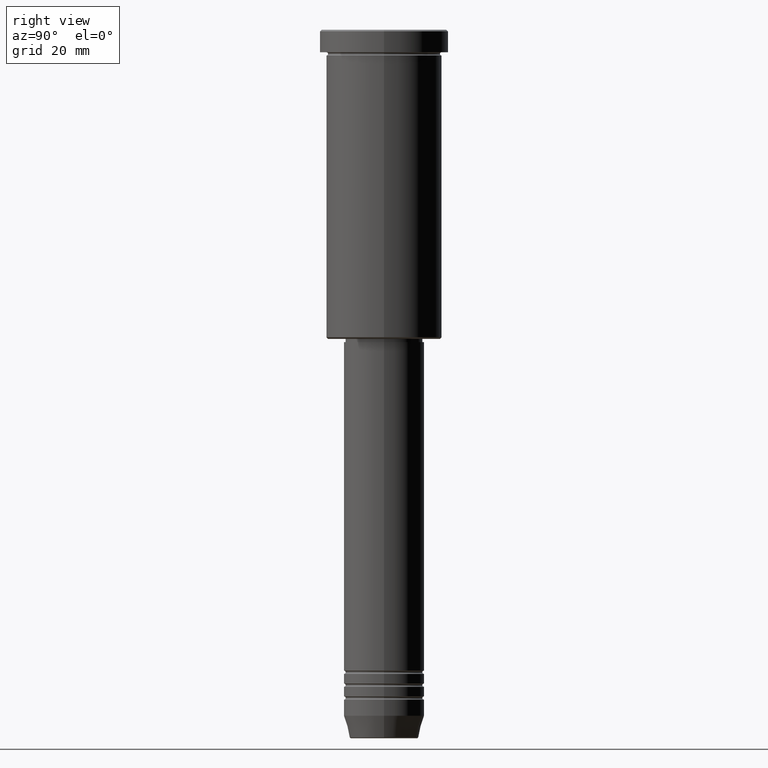
[diagram: clean part render]
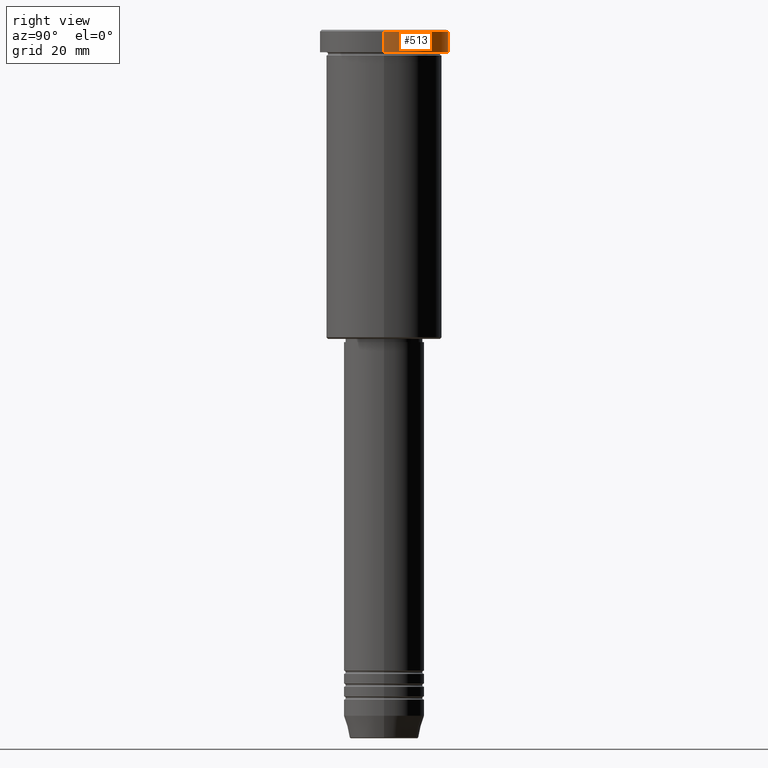
[diagram: same view with one face highlighted and labeled with its STEP entity id]
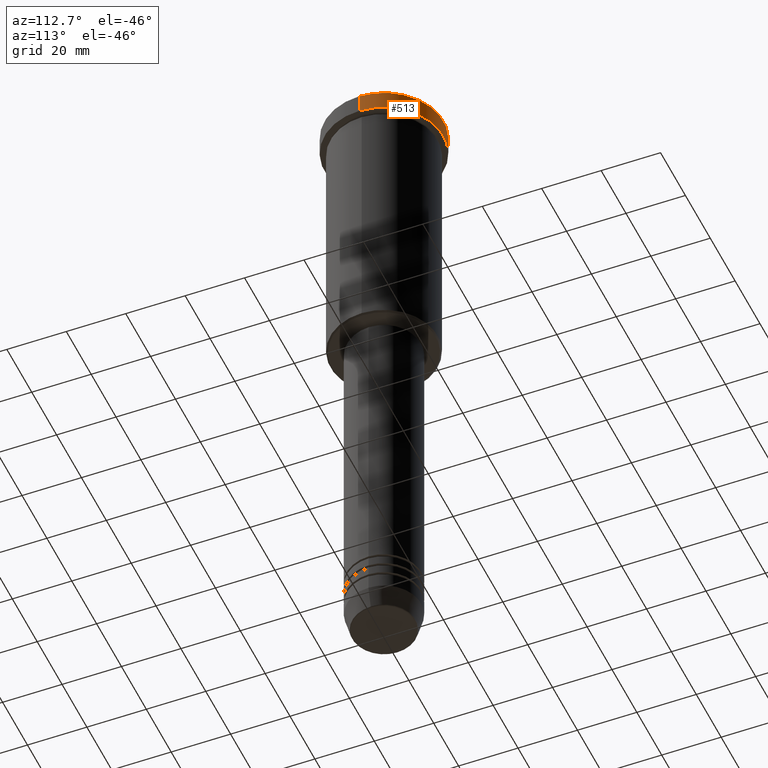
[diagram: same view with one face highlighted and labeled with its STEP entity id]
A machine part, right view. The second image highlights one B-rep face of the part: STEP entity #513.
A second angle (auxiliary view) of the same face is appended — the face is thin or edge-on in the first view.
In plain terms, the highlighted cylindrical surface (partial cylindrical patch) has radius 20 mm, axis along (-0, -0, 1).
Its self-contained STEP definition (entity closure, byte-faithful):
#3 = VERTEX_POINT ( 'NONE', #751 ) ;
#9 = EDGE_CURVE ( 'NONE', #313, #3, #978, .T. ) ;
#73 = DIRECTION ( 'NONE',  ( -0.000000000000000000, -0.000000000000000000, 1.000000000000000000 ) ) ;
#74 = ORIENTED_EDGE ( 'NONE', *, *, #439, .T. ) ;
#198 = CARTESIAN_POINT ( 'NONE',  ( -20.00000000000000000, 2.449293598294706513E-15, -0.4999999999999970024 ) ) ;
#309 = DIRECTION ( 'NONE',  ( 1.000000000000000000, 0.000000000000000000, 0.000000000000000000 ) ) ;
#313 = VERTEX_POINT ( 'NONE', #927 ) ;
#332 = DIRECTION ( 'NONE',  ( -0.000000000000000000, -0.000000000000000000, 1.000000000000000000 ) ) ;
#402 = AXIS2_PLACEMENT_3D ( 'NONE', #436, #800, #611 ) ;
#409 = CYLINDRICAL_SURFACE ( 'NONE', #904, 20.00000000000000000 ) ;
#417 = CARTESIAN_POINT ( 'NONE',  ( -20.00000000000000000, 2.449293598294706513E-15, 0.000000000000000000 ) ) ;
#436 = CARTESIAN_POINT ( 'NONE',  ( 0.000000000000000000, 0.000000000000000000, -0.4999999999999970024 ) ) ;
#439 = EDGE_CURVE ( 'NONE', #870, #750, #612, .T. ) ;
#454 = LINE ( 'NONE', #461, #825 ) ;
#461 = CARTESIAN_POINT ( 'NONE',  ( 20.00000000000000000, 0.000000000000000000, 0.000000000000000000 ) ) ;
#482 = DIRECTION ( 'NONE',  ( 1.000000000000000000, 0.000000000000000000, 0.000000000000000000 ) ) ;
#513 = ADVANCED_FACE ( 'NONE', ( #861 ), #409, .T. ) ;
#572 = VECTOR ( 'NONE', #1146, 1000.000000000000000 ) ;
#588 = AXIS2_PLACEMENT_3D ( 'NONE', #1121, #759, #482 ) ;
#596 = LINE ( 'NONE', #417, #572 ) ;
#611 = DIRECTION ( 'NONE',  ( 1.000000000000000000, 0.000000000000000000, 0.000000000000000000 ) ) ;
#612 = CIRCLE ( 'NONE', #402, 20.00000000000000000 ) ;
#684 = EDGE_CURVE ( 'NONE', #3, #870, #596, .T. ) ;
#739 = EDGE_CURVE ( 'NONE', #313, #750, #454, .T. ) ;
#750 = VERTEX_POINT ( 'NONE', #1091 ) ;
#751 = CARTESIAN_POINT ( 'NONE',  ( -20.00000000000000000, 2.449293598294706513E-15, -6.999999999999995559 ) ) ;
#759 = DIRECTION ( 'NONE',  ( -0.000000000000000000, -0.000000000000000000, 1.000000000000000000 ) ) ;
#765 = CARTESIAN_POINT ( 'NONE',  ( 0.000000000000000000, 0.000000000000000000, 0.000000000000000000 ) ) ;
#771 = ORIENTED_EDGE ( 'NONE', *, *, #684, .T. ) ;
#800 = DIRECTION ( 'NONE',  ( 0.000000000000000000, 0.000000000000000000, -1.000000000000000000 ) ) ;
#825 = VECTOR ( 'NONE', #73, 1000.000000000000000 ) ;
#861 = FACE_OUTER_BOUND ( 'NONE', #1086, .T. ) ;
#870 = VERTEX_POINT ( 'NONE', #198 ) ;
#883 = ORIENTED_EDGE ( 'NONE', *, *, #9, .T. ) ;
#904 = AXIS2_PLACEMENT_3D ( 'NONE', #765, #332, #309 ) ;
#927 = CARTESIAN_POINT ( 'NONE',  ( 20.00000000000000000, 0.000000000000000000, -6.999999999999995559 ) ) ;
#967 = ORIENTED_EDGE ( 'NONE', *, *, #739, .F. ) ;
#978 = CIRCLE ( 'NONE', #588, 20.00000000000000000 ) ;
#1086 = EDGE_LOOP ( 'NONE', ( #883, #771, #74, #967 ) ) ;
#1091 = CARTESIAN_POINT ( 'NONE',  ( 20.00000000000000000, 0.000000000000000000, -0.4999999999999970024 ) ) ;
#1121 = CARTESIAN_POINT ( 'NONE',  ( 0.000000000000000000, 0.000000000000000000, -6.999999999999995559 ) ) ;
#1146 = DIRECTION ( 'NONE',  ( -0.000000000000000000, -0.000000000000000000, 1.000000000000000000 ) ) ;